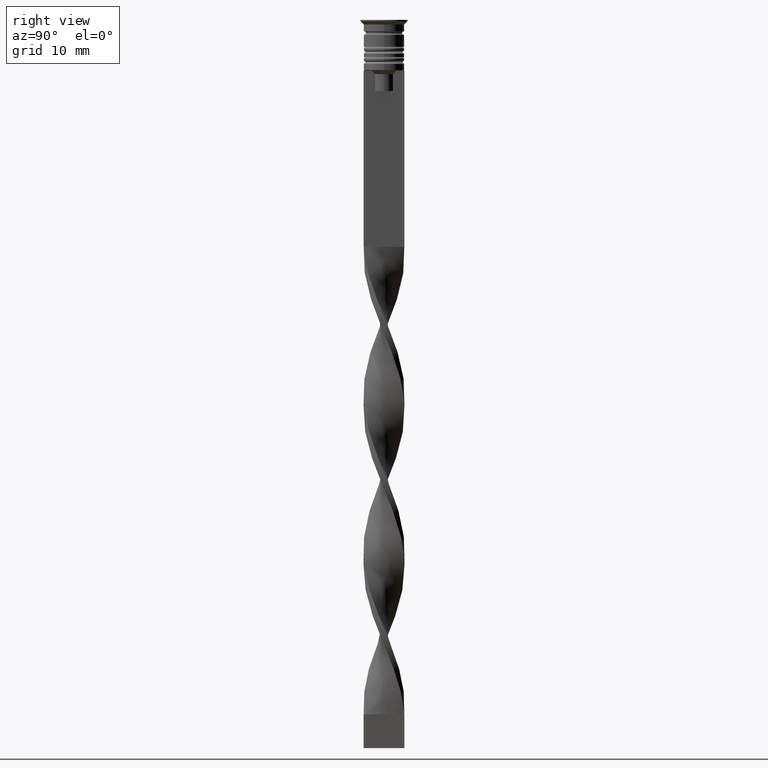
[diagram: clean part render]
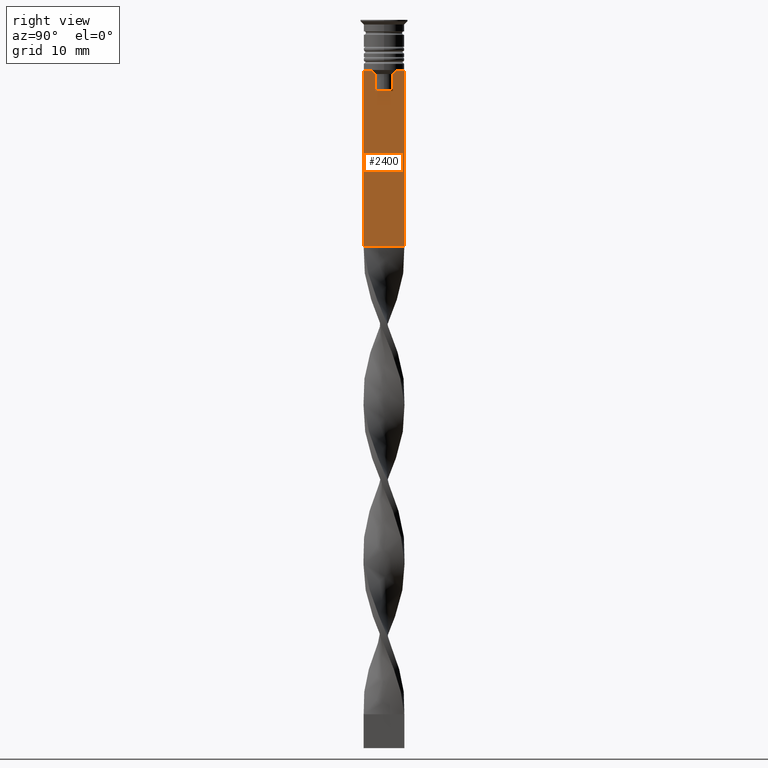
[diagram: same view with one face highlighted and labeled with its STEP entity id]
A machine part, right view. The second image highlights one B-rep face of the part: STEP entity #2400.
In plain terms, the highlighted planar face has unit normal (-1, 0, 0).
Its self-contained STEP definition (entity closure, byte-faithful):
#53 = LINE ( 'NONE', #3241, #2928 ) ;
#57 = EDGE_CURVE ( 'NONE', #1619, #2135, #3163, .T. ) ;
#107 = VECTOR ( 'NONE', #2207, 1000.000000000000000 ) ;
#134 = CARTESIAN_POINT ( 'NONE',  ( 0.4999999999999998890, -1.484307477388859153, -7.835011508197190722 ) ) ;
#280 = VECTOR ( 'NONE', #335, 1000.000000000000000 ) ;
#287 = ORIENTED_EDGE ( 'NONE', *, *, #2028, .T. ) ;
#296 = EDGE_CURVE ( 'NONE', #436, #2135, #2210, .T. ) ;
#335 = DIRECTION ( 'NONE',  ( 0.000000000000000000, -1.000000000000000000, 0.000000000000000000 ) ) ;
#414 = ORIENTED_EDGE ( 'NONE', *, *, #2548, .T. ) ;
#436 = VERTEX_POINT ( 'NONE', #2074 ) ;
#451 = VERTEX_POINT ( 'NONE', #758 ) ;
#516 = PLANE ( 'NONE',  #3329 ) ;
#563 = DIRECTION ( 'NONE',  ( 0.000000000000000000, 0.000000000000000000, -1.000000000000000000 ) ) ;
#576 = CARTESIAN_POINT ( 'NONE',  ( 0.4999999999999998890, -1.833030277982335754, -7.500000000000000000 ) ) ;
#599 = EDGE_CURVE ( 'NONE', #2669, #2358, #53, .T. ) ;
#637 = CARTESIAN_POINT ( 'NONE',  ( 0.4999999999999998890, 1.399999999999997691, -10.49999999999999822 ) ) ;
#649 = CARTESIAN_POINT ( 'NONE',  ( 0.4999999999999998890, -1.307669683062199439, -8.000000000000000000 ) ) ;
#655 = VECTOR ( 'NONE', #2696, 1000.000000000000000 ) ;
#673 = LINE ( 'NONE', #637, #655 ) ;
#752 = DIRECTION ( 'NONE',  ( -0.000000000000000000, -0.000000000000000000, 1.000000000000000000 ) ) ;
#758 = CARTESIAN_POINT ( 'NONE',  ( 0.4999999999999998890, 1.833030277982335754, -7.500000000000000000 ) ) ;
#763 = CARTESIAN_POINT ( 'NONE',  ( 0.4999999999999998890, 1.307669683062199439, -8.000000000000000000 ) ) ;
#783 = ORIENTED_EDGE ( 'NONE', *, *, #296, .T. ) ;
#826 = ORIENTED_EDGE ( 'NONE', *, *, #2793, .T. ) ;
#837 = ORIENTED_EDGE ( 'NONE', *, *, #57, .F. ) ;
#893 = CARTESIAN_POINT ( 'NONE',  ( 0.4999999999999998890, 1.307669683062199439, -10.49999999999999822 ) ) ;
#926 = CARTESIAN_POINT ( 'NONE',  ( 0.4999999999999998890, -3.000000000000000000, -7.500000000000000000 ) ) ;
#978 = VERTEX_POINT ( 'NONE', #763 ) ;
#1115 = DIRECTION ( 'NONE',  ( 0.000000000000000000, -1.000000000000000000, 0.000000000000000000 ) ) ;
#1119 = VERTEX_POINT ( 'NONE', #3079 ) ;
#1168 = LINE ( 'NONE', #2782, #280 ) ;
#1178 = DIRECTION ( 'NONE',  ( 0.000000000000000000, 0.000000000000000000, -1.000000000000000000 ) ) ;
#1222 = EDGE_CURVE ( 'NONE', #1619, #1119, #1168, .T. ) ;
#1289 = CARTESIAN_POINT ( 'NONE',  ( 0.4999999999999998890, -1.307669683062199439, 0.000000000000000000 ) ) ;
#1311 = CARTESIAN_POINT ( 'NONE',  ( 0.4999999999999998890, 1.833030277982335754, -7.500000000000000000 ) ) ;
#1346 = LINE ( 'NONE', #1654, #1485 ) ;
#1360 = CARTESIAN_POINT ( 'NONE',  ( 0.4999999999999998890, 3.000000000000000000, -1.417237469701779329 ) ) ;
#1380 = VECTOR ( 'NONE', #2594, 1000.000000000000000 ) ;
#1385 = CARTESIAN_POINT ( 'NONE',  ( 0.4999999999999998890, 1.307669683062199439, -8.000000000000000000 ) ) ;
#1436 = DIRECTION ( 'NONE',  ( 0.000000000000000000, 1.000000000000000000, 0.000000000000000000 ) ) ;
#1438 = VECTOR ( 'NONE', #563, 1000.000000000000000 ) ;
#1485 = VECTOR ( 'NONE', #1178, 1000.000000000000000 ) ;
#1504 = ORIENTED_EDGE ( 'NONE', *, *, #599, .T. ) ;
#1559 = ORIENTED_EDGE ( 'NONE', *, *, #1966, .T. ) ;
#1606 = DIRECTION ( 'NONE',  ( 0.000000000000000000, -1.000000000000000000, 0.000000000000000000 ) ) ;
#1616 = LINE ( 'NONE', #1289, #2372 ) ;
#1619 = VERTEX_POINT ( 'NONE', #1899 ) ;
#1654 = CARTESIAN_POINT ( 'NONE',  ( 0.4999999999999998890, 1.307669683062199439, 0.000000000000000000 ) ) ;
#1669 = LINE ( 'NONE', #2977, #107 ) ;
#1721 = DIRECTION ( 'NONE',  ( 0.000000000000000000, 0.000000000000000000, 1.000000000000000000 ) ) ;
#1728 = EDGE_CURVE ( 'NONE', #978, #2658, #1346, .T. ) ;
#1867 = ORIENTED_EDGE ( 'NONE', *, *, #1728, .T. ) ;
#1899 = CARTESIAN_POINT ( 'NONE',  ( 0.4999999999999998890, 3.000000000000000000, -7.500000000000000000 ) ) ;
#1916 = B_SPLINE_CURVE_WITH_KNOTS ( 'NONE', 3,
 ( #1311, #2419, #3237, #1385 ),
 .UNSPECIFIED., .F., .F.,
 ( 4, 4 ),
 ( 0.003278537493109848298, 0.004003794023484941178 ),
 .UNSPECIFIED. ) ;
#1954 = CARTESIAN_POINT ( 'NONE',  ( 0.4999999999999998890, 3.000000000000000000, -33.50000000000000000 ) ) ;
#1966 = EDGE_CURVE ( 'NONE', #2658, #2695, #673, .T. ) ;
#1986 = CARTESIAN_POINT ( 'NONE',  ( 0.4999999999999998890, -1.659011726860414093, -7.667884880598472286 ) ) ;
#1996 = CARTESIAN_POINT ( 'NONE',  ( 0.4999999999999998890, -1.307669683062199439, -10.49999999999999822 ) ) ;
#2017 = CARTESIAN_POINT ( 'NONE',  ( 0.4999999999999998890, -3.000000000000000000, -1.417237469701779329 ) ) ;
#2028 = EDGE_CURVE ( 'NONE', #2695, #3425, #1616, .T. ) ;
#2051 = ORIENTED_EDGE ( 'NONE', *, *, #3386, .T. ) ;
#2074 = CARTESIAN_POINT ( 'NONE',  ( 0.4999999999999998890, -3.000000000000000000, -33.50000000000000000 ) ) ;
#2076 = EDGE_CURVE ( 'NONE', #2358, #436, #1669, .T. ) ;
#2120 = VERTEX_POINT ( 'NONE', #576 ) ;
#2135 = VERTEX_POINT ( 'NONE', #1954 ) ;
#2170 = B_SPLINE_CURVE_WITH_KNOTS ( 'NONE', 3,
 ( #649, #134, #1986, #2487 ),
 .UNSPECIFIED., .F., .F.,
 ( 4, 4 ),
 ( 0.007225659348748082224, 0.007950554640278054835 ),
 .UNSPECIFIED. ) ;
#2207 = DIRECTION ( 'NONE',  ( 0.000000000000000000, 0.000000000000000000, -1.000000000000000000 ) ) ;
#2210 = LINE ( 'NONE', #3289, #3046 ) ;
#2299 = LINE ( 'NONE', #3374, #1380 ) ;
#2358 = VERTEX_POINT ( 'NONE', #926 ) ;
#2372 = VECTOR ( 'NONE', #752, 1000.000000000000000 ) ;
#2378 = VECTOR ( 'NONE', #1606, 1000.000000000000000 ) ;
#2400 = ADVANCED_FACE ( 'NONE', ( #2899 ), #516, .F. ) ;
#2419 = CARTESIAN_POINT ( 'NONE',  ( 0.4999999999999998890, 1.659046061654642967, -7.667851756010362507 ) ) ;
#2449 = ORIENTED_EDGE ( 'NONE', *, *, #2744, .T. ) ;
#2487 = CARTESIAN_POINT ( 'NONE',  ( 0.4999999999999998890, -1.833030277982335754, -7.500000000000000000 ) ) ;
#2548 = EDGE_CURVE ( 'NONE', #2120, #2669, #2703, .T. ) ;
#2594 = DIRECTION ( 'NONE',  ( 0.000000000000000000, -1.000000000000000000, 0.000000000000000000 ) ) ;
#2628 = DIRECTION ( 'NONE',  ( -1.000000000000000000, 0.000000000000000000, 0.000000000000000000 ) ) ;
#2658 = VERTEX_POINT ( 'NONE', #893 ) ;
#2669 = VERTEX_POINT ( 'NONE', #3295 ) ;
#2695 = VERTEX_POINT ( 'NONE', #1996 ) ;
#2696 = DIRECTION ( 'NONE',  ( 0.000000000000000000, -1.000000000000000000, 0.000000000000000000 ) ) ;
#2703 = LINE ( 'NONE', #2724, #2378 ) ;
#2724 = CARTESIAN_POINT ( 'NONE',  ( 0.4999999999999998890, -3.000000000000000000, -7.500000000000000000 ) ) ;
#2744 = EDGE_CURVE ( 'NONE', #1119, #451, #2299, .T. ) ;
#2782 = CARTESIAN_POINT ( 'NONE',  ( 0.4999999999999998890, -3.000000000000000000, -7.500000000000000000 ) ) ;
#2793 = EDGE_CURVE ( 'NONE', #451, #978, #1916, .T. ) ;
#2802 = ORIENTED_EDGE ( 'NONE', *, *, #2076, .T. ) ;
#2833 = EDGE_LOOP ( 'NONE', ( #2449, #826, #1867, #1559, #287, #2051, #414, #1504, #2802, #783, #837, #2852 ) ) ;
#2852 = ORIENTED_EDGE ( 'NONE', *, *, #1222, .T. ) ;
#2899 = FACE_OUTER_BOUND ( 'NONE', #2833, .T. ) ;
#2928 = VECTOR ( 'NONE', #1115, 1000.000000000000000 ) ;
#2977 = CARTESIAN_POINT ( 'NONE',  ( 0.4999999999999998890, -3.000000000000000000, -1.417237469701779329 ) ) ;
#3046 = VECTOR ( 'NONE', #1436, 1000.000000000000000 ) ;
#3079 = CARTESIAN_POINT ( 'NONE',  ( 0.4999999999999998890, 2.856571371417139904, -7.500000000000000000 ) ) ;
#3163 = LINE ( 'NONE', #1360, #1438 ) ;
#3237 = CARTESIAN_POINT ( 'NONE',  ( 0.4999999999999998890, 1.484355510416485835, -7.834966642958598015 ) ) ;
#3241 = CARTESIAN_POINT ( 'NONE',  ( 0.4999999999999998890, -3.000000000000000000, -7.500000000000000000 ) ) ;
#3269 = CARTESIAN_POINT ( 'NONE',  ( 0.4999999999999998890, -1.307669683062199439, -8.000000000000000000 ) ) ;
#3289 = CARTESIAN_POINT ( 'NONE',  ( 0.4999999999999998890, -3.000000000000000000, -33.50000000000000000 ) ) ;
#3295 = CARTESIAN_POINT ( 'NONE',  ( 0.4999999999999998890, -2.856571371417139904, -7.500000000000000000 ) ) ;
#3329 = AXIS2_PLACEMENT_3D ( 'NONE', #2017, #2628, #1721 ) ;
#3374 = CARTESIAN_POINT ( 'NONE',  ( 0.4999999999999998890, -3.000000000000000000, -7.500000000000000000 ) ) ;
#3386 = EDGE_CURVE ( 'NONE', #3425, #2120, #2170, .T. ) ;
#3425 = VERTEX_POINT ( 'NONE', #3269 ) ;